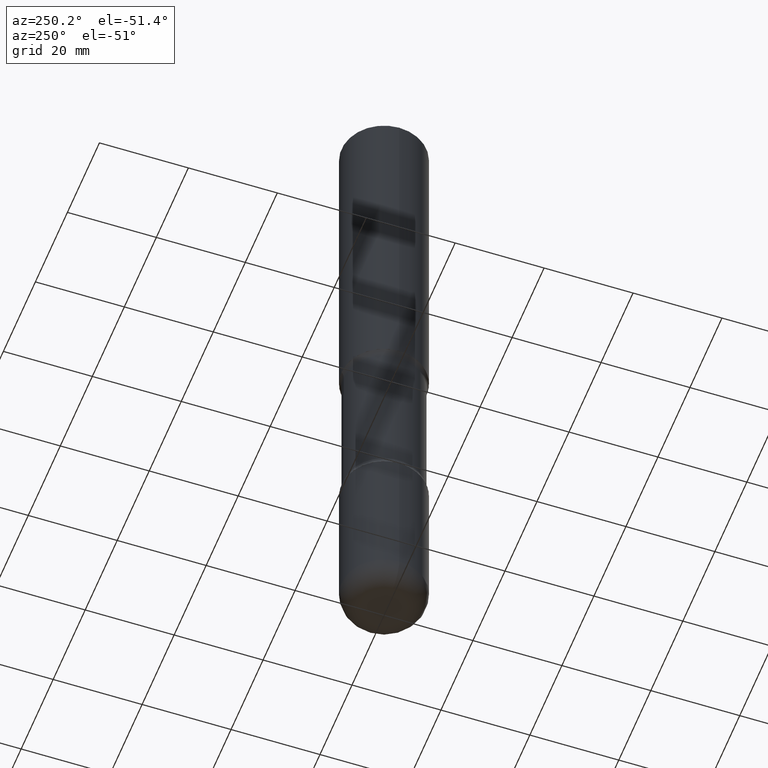
[diagram: clean part render]
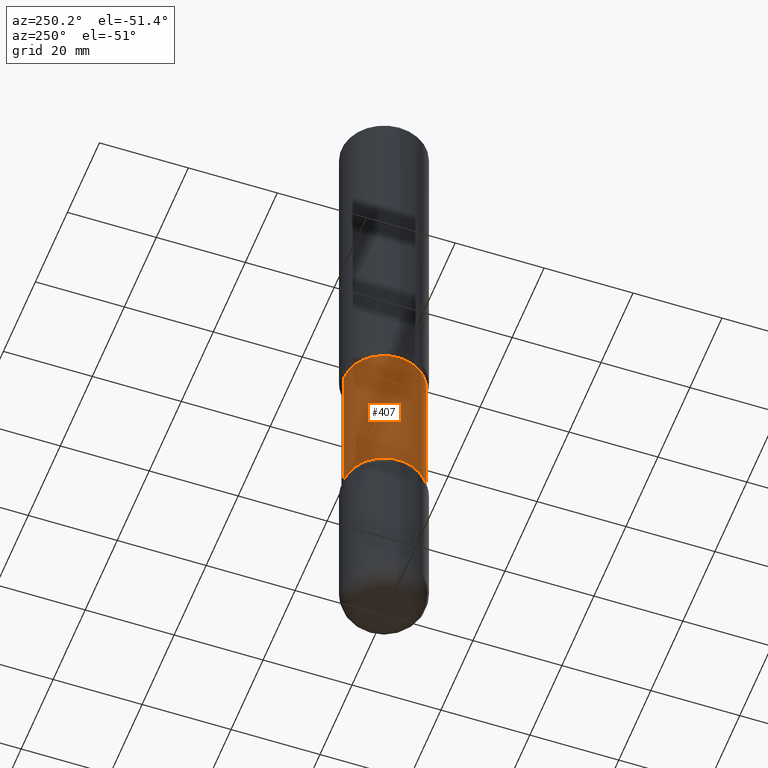
[diagram: same view with one face highlighted and labeled with its STEP entity id]
A machine part, auxiliary view. The second image highlights one B-rep face of the part: STEP entity #407.
In plain terms, the highlighted cylindrical surface (partial cylindrical patch) has radius 9.0488 mm, axis along (0, -0, -1).
Its self-contained STEP definition (entity closure, byte-faithful):
#14 = CARTESIAN_POINT ( 'NONE',  ( 2.487680453925806274E-15, 0.3562499999999891309, -3.065847835955330503 ) ) ;
#17 = DIRECTION ( 'NONE',  ( 2.508247471065963170E-29, -3.401578717594097873E-15, -1.000000000000000000 ) ) ;
#65 = DIRECTION ( 'NONE',  ( 6.982962677686265133E-15, 1.000000000000000000, -3.067338098149347905E-15 ) ) ;
#70 = AXIS2_PLACEMENT_3D ( 'NONE', #161, #419, #330 ) ;
#73 = EDGE_CURVE ( 'NONE', #361, #440, #331, .T. ) ;
#74 = EDGE_CURVE ( 'NONE', #322, #176, #245, .T. ) ;
#83 = CARTESIAN_POINT ( 'NONE',  ( 7.407401089244291879E-29, -1.083328454578828421E-14, -3.065847835955329614 ) ) ;
#131 = DIRECTION ( 'NONE',  ( 6.982962677686265133E-15, 1.000000000000000000, -3.067338098149347905E-15 ) ) ;
#133 = ORIENTED_EDGE ( 'NONE', *, *, #74, .F. ) ;
#146 = EDGE_CURVE ( 'NONE', #176, #440, #515, .T. ) ;
#151 = VECTOR ( 'NONE', #420, 39.37007874015748143 ) ;
#161 = CARTESIAN_POINT ( 'NONE',  ( 1.476698083443205790E-28, -2.081403410118529621E-14, -5.999999999999999112 ) ) ;
#176 = VERTEX_POINT ( 'NONE', #381 ) ;
#194 = EDGE_LOOP ( 'NONE', ( #133, #214, #437, #397 ) ) ;
#199 = EDGE_CURVE ( 'NONE', #322, #361, #396, .T. ) ;
#214 = ORIENTED_EDGE ( 'NONE', *, *, #199, .T. ) ;
#242 = CARTESIAN_POINT ( 'NONE',  ( 1.083944695982298980E-28, -1.548767942740887449E-14, -4.434152164044669497 ) ) ;
#245 = LINE ( 'NONE', #295, #151 ) ;
#295 = CARTESIAN_POINT ( 'NONE',  ( -2.444052411705960129E-15, -0.3562500000000208278, -5.999999999999998224 ) ) ;
#298 = DIRECTION ( 'NONE',  ( 2.508247471065963170E-29, -3.401578717594097873E-15, -1.000000000000000000 ) ) ;
#301 = AXIS2_PLACEMENT_3D ( 'NONE', #83, #298, #131 ) ;
#322 = VERTEX_POINT ( 'NONE', #556 ) ;
#330 = DIRECTION ( 'NONE',  ( 6.982962677686265133E-15, 1.000000000000000000, -3.067338098149347905E-15 ) ) ;
#331 = LINE ( 'NONE', #455, #395 ) ;
#361 = VERTEX_POINT ( 'NONE', #14 ) ;
#365 = AXIS2_PLACEMENT_3D ( 'NONE', #242, #454, #65 ) ;
#381 = CARTESIAN_POINT ( 'NONE',  ( -2.508369580435107128E-15, -0.3562500000000154987, -4.434152164044668609 ) ) ;
#385 = CARTESIAN_POINT ( 'NONE',  ( 2.487680453925840195E-15, 0.3562499999999844680, -4.434152164044670386 ) ) ;
#395 = VECTOR ( 'NONE', #17, 39.37007874015748143 ) ;
#396 = CIRCLE ( 'NONE', #301, 0.3562500000000000111 ) ;
#397 = ORIENTED_EDGE ( 'NONE', *, *, #146, .F. ) ;
#407 = ADVANCED_FACE ( 'NONE', ( #538 ), #503, .T. ) ;
#419 = DIRECTION ( 'NONE',  ( 2.508247471065963170E-29, -3.401578717594097873E-15, -1.000000000000000000 ) ) ;
#420 = DIRECTION ( 'NONE',  ( 2.508247471065963170E-29, -3.401578717594097873E-15, -1.000000000000000000 ) ) ;
#437 = ORIENTED_EDGE ( 'NONE', *, *, #73, .T. ) ;
#440 = VERTEX_POINT ( 'NONE', #385 ) ;
#454 = DIRECTION ( 'NONE',  ( 2.508247471065963170E-29, -3.401578717594097873E-15, -1.000000000000000000 ) ) ;
#455 = CARTESIAN_POINT ( 'NONE',  ( 2.487680453925879638E-15, 0.3562499999999791389, -6.000000000000000888 ) ) ;
#503 = CYLINDRICAL_SURFACE ( 'NONE', #70, 0.3562500000000000111 ) ;
#515 = CIRCLE ( 'NONE', #365, 0.3562500000000000111 ) ;
#538 = FACE_OUTER_BOUND ( 'NONE', #194, .T. ) ;
#556 = CARTESIAN_POINT ( 'NONE',  ( -2.508369580435144205E-15, -0.3562500000000108358, -3.065847835955328282 ) ) ;